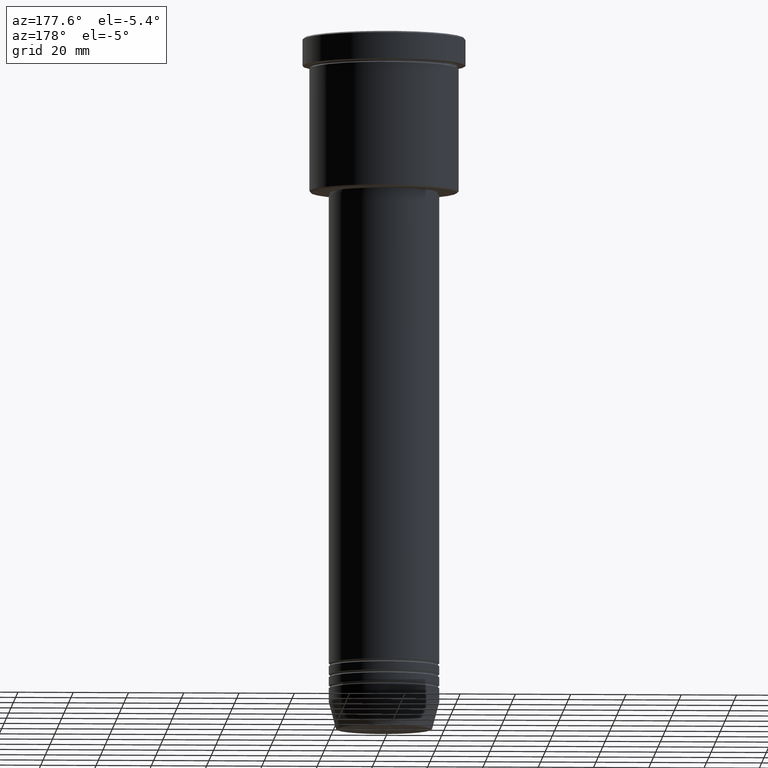
[diagram: clean part render]
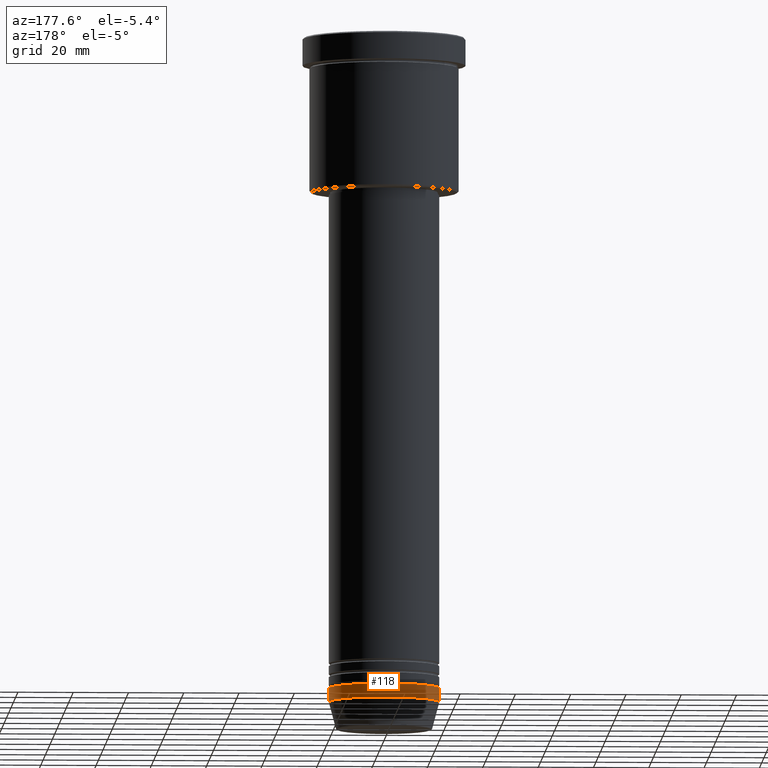
[diagram: same view with one face highlighted and labeled with its STEP entity id]
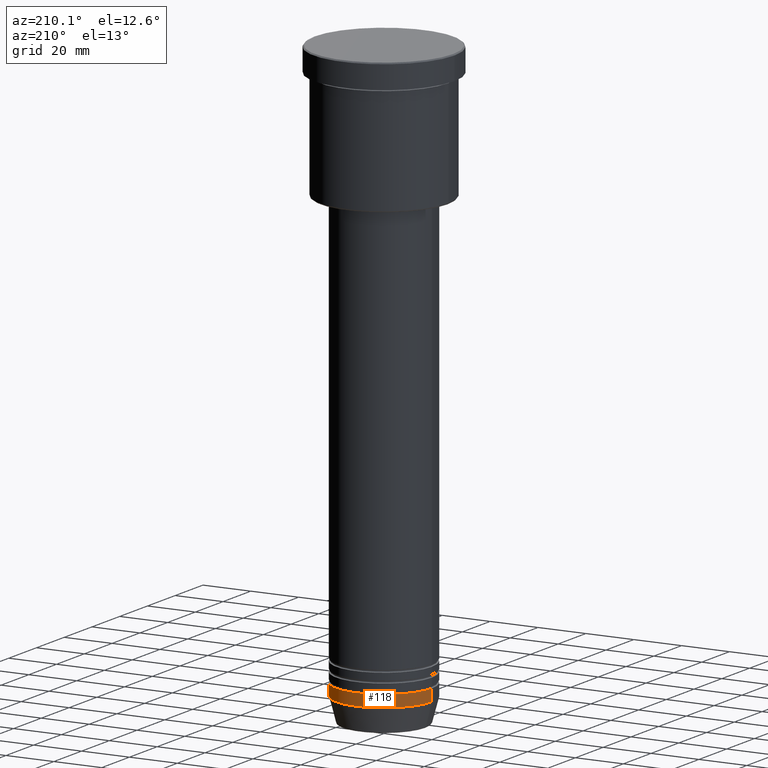
[diagram: same view with one face highlighted and labeled with its STEP entity id]
A machine part, auxiliary view. The second image highlights one B-rep face of the part: STEP entity #118.
A second angle (auxiliary view) of the same face is appended — the face is thin or edge-on in the first view.
In plain terms, the highlighted cylindrical surface (partial cylindrical patch) has radius 20 mm, axis along (-0, -0, 1).
Its self-contained STEP definition (entity closure, byte-faithful):
#9 = ORIENTED_EDGE ( 'NONE', *, *, #648, .T. ) ;
#77 = LINE ( 'NONE', #800, #402 ) ;
#118 = ADVANCED_FACE ( 'NONE', ( #123 ), #314, .T. ) ;
#123 = FACE_OUTER_BOUND ( 'NONE', #147, .T. ) ;
#125 = CARTESIAN_POINT ( 'NONE',  ( -20.00000000000000000, 2.449293598294706513E-15, -241.0000000000000000 ) ) ;
#147 = EDGE_LOOP ( 'NONE', ( #408, #9, #357, #752 ) ) ;
#207 = VERTEX_POINT ( 'NONE', #1147 ) ;
#249 = EDGE_CURVE ( 'NONE', #446, #1014, #459, .T. ) ;
#303 = DIRECTION ( 'NONE',  ( 1.000000000000000000, 0.000000000000000000, 0.000000000000000000 ) ) ;
#308 = AXIS2_PLACEMENT_3D ( 'NONE', #444, #971, #584 ) ;
#310 = VECTOR ( 'NONE', #764, 1000.000000000000000 ) ;
#313 = AXIS2_PLACEMENT_3D ( 'NONE', #690, #518, #1166 ) ;
#314 = CYLINDRICAL_SURFACE ( 'NONE', #824, 20.00000000000000000 ) ;
#348 = DIRECTION ( 'NONE',  ( -0.000000000000000000, -0.000000000000000000, 1.000000000000000000 ) ) ;
#357 = ORIENTED_EDGE ( 'NONE', *, *, #1130, .F. ) ;
#402 = VECTOR ( 'NONE', #348, 1000.000000000000000 ) ;
#408 = ORIENTED_EDGE ( 'NONE', *, *, #249, .T. ) ;
#411 = CARTESIAN_POINT ( 'NONE',  ( 0.000000000000000000, 0.000000000000000000, 0.000000000000000000 ) ) ;
#444 = CARTESIAN_POINT ( 'NONE',  ( 0.000000000000000000, 0.000000000000000000, -241.0000000000000000 ) ) ;
#446 = VERTEX_POINT ( 'NONE', #553 ) ;
#459 = CIRCLE ( 'NONE', #308, 20.00000000000000000 ) ;
#505 = EDGE_CURVE ( 'NONE', #446, #207, #955, .T. ) ;
#518 = DIRECTION ( 'NONE',  ( -0.000000000000000000, -0.000000000000000000, 1.000000000000000000 ) ) ;
#553 = CARTESIAN_POINT ( 'NONE',  ( 20.00000000000000000, 0.000000000000000000, -241.0000000000000000 ) ) ;
#571 = DIRECTION ( 'NONE',  ( -0.000000000000000000, -0.000000000000000000, 1.000000000000000000 ) ) ;
#584 = DIRECTION ( 'NONE',  ( 1.000000000000000000, 0.000000000000000000, 0.000000000000000000 ) ) ;
#646 = CARTESIAN_POINT ( 'NONE',  ( -20.00000000000000000, 2.449293598294706513E-15, -236.0000000000000284 ) ) ;
#648 = EDGE_CURVE ( 'NONE', #1014, #793, #77, .T. ) ;
#690 = CARTESIAN_POINT ( 'NONE',  ( 0.000000000000000000, 0.000000000000000000, -236.0000000000000284 ) ) ;
#752 = ORIENTED_EDGE ( 'NONE', *, *, #505, .F. ) ;
#764 = DIRECTION ( 'NONE',  ( -0.000000000000000000, -0.000000000000000000, 1.000000000000000000 ) ) ;
#793 = VERTEX_POINT ( 'NONE', #646 ) ;
#800 = CARTESIAN_POINT ( 'NONE',  ( -20.00000000000000000, 2.449293598294706513E-15, 0.000000000000000000 ) ) ;
#824 = AXIS2_PLACEMENT_3D ( 'NONE', #411, #571, #303 ) ;
#955 = LINE ( 'NONE', #1050, #310 ) ;
#971 = DIRECTION ( 'NONE',  ( -0.000000000000000000, -0.000000000000000000, 1.000000000000000000 ) ) ;
#1014 = VERTEX_POINT ( 'NONE', #125 ) ;
#1050 = CARTESIAN_POINT ( 'NONE',  ( 20.00000000000000000, 0.000000000000000000, 0.000000000000000000 ) ) ;
#1087 = CIRCLE ( 'NONE', #313, 20.00000000000000000 ) ;
#1130 = EDGE_CURVE ( 'NONE', #207, #793, #1087, .T. ) ;
#1147 = CARTESIAN_POINT ( 'NONE',  ( 20.00000000000000000, 0.000000000000000000, -236.0000000000000284 ) ) ;
#1166 = DIRECTION ( 'NONE',  ( 1.000000000000000000, 0.000000000000000000, 0.000000000000000000 ) ) ;